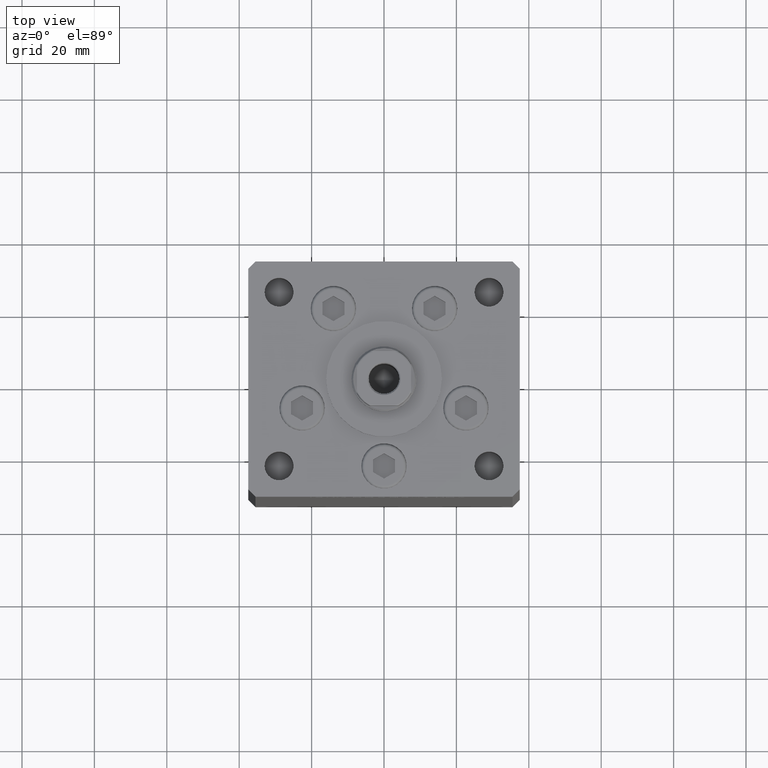
[diagram: clean part render]
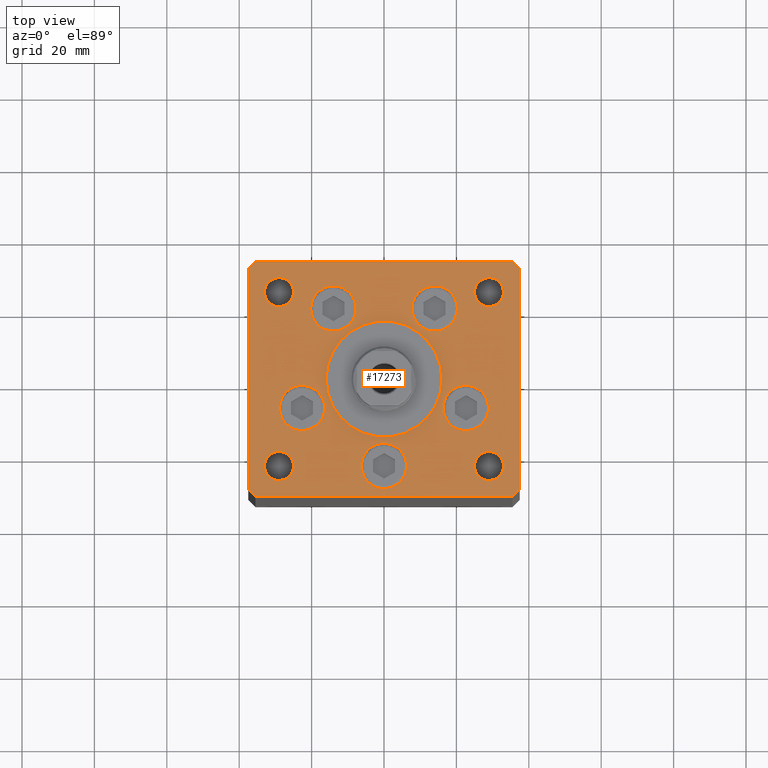
[diagram: same view with one face highlighted and labeled with its STEP entity id]
A machine part, top view. The second image highlights one B-rep face of the part: STEP entity #17273.
In plain terms, the highlighted planar face has unit normal (0, 0, 1).
Its self-contained STEP definition (entity closure, byte-faithful):
#188 = EDGE_CURVE ( 'NONE', #40757, #30169, #30463, .T. ) ;
#371 = VERTEX_POINT ( 'NONE', #25803 ) ;
#455 = VERTEX_POINT ( 'NONE', #30554 ) ;
#525 = CARTESIAN_POINT ( 'NONE',  ( -29.00000000000000000, -23.99999999999999645, 0.000000000000000000 ) ) ;
#582 = LINE ( 'NONE', #8499, #25822 ) ;
#586 = DIRECTION ( 'NONE',  ( 0.000000000000000000, 0.000000000000000000, 1.000000000000000000 ) ) ;
#613 = VERTEX_POINT ( 'NONE', #29712 ) ;
#841 = DIRECTION ( 'NONE',  ( 1.000000000000000000, 0.000000000000000000, 0.000000000000000000 ) ) ;
#1066 = DIRECTION ( 'NONE',  ( -0.7071067811865524577, -0.7071067811865426878, 0.000000000000000000 ) ) ;
#1152 = VERTEX_POINT ( 'NONE', #44031 ) ;
#1302 = AXIS2_PLACEMENT_3D ( 'NONE', #8508, #13500, #30383 ) ;
#1548 = DIRECTION ( 'NONE',  ( 1.000000000000000000, 0.000000000000000000, 0.000000000000000000 ) ) ;
#1757 = CIRCLE ( 'NONE', #16059, 6.250000000000001776 ) ;
#2169 = CIRCLE ( 'NONE', #8912, 3.999999999999996447 ) ;
#2245 = CARTESIAN_POINT ( 'NONE',  ( -29.00000000000000000, 24.00000000000000711, 0.000000000000000000 ) ) ;
#2303 = VERTEX_POINT ( 'NONE', #41599 ) ;
#2668 = AXIS2_PLACEMENT_3D ( 'NONE', #46676, #34528, #14211 ) ;
#2766 = ORIENTED_EDGE ( 'NONE', *, *, #35636, .F. ) ;
#2816 = AXIS2_PLACEMENT_3D ( 'NONE', #3508, #48083, #7723 ) ;
#2934 = AXIS2_PLACEMENT_3D ( 'NONE', #11773, #43961, #27372 ) ;
#3452 = CARTESIAN_POINT ( 'NONE',  ( 35.50000000000001421, -32.49999999999992184, 0.000000000000000000 ) ) ;
#3508 = CARTESIAN_POINT ( 'NONE',  ( 0.000000000000000000, 0.000000000000000000, 0.000000000000000000 ) ) ;
#4004 = CIRCLE ( 'NONE', #23394, 6.250000000000001776 ) ;
#4202 = ORIENTED_EDGE ( 'NONE', *, *, #49988, .F. ) ;
#4238 = ORIENTED_EDGE ( 'NONE', *, *, #188, .F. ) ;
#4450 = CARTESIAN_POINT ( 'NONE',  ( 0.000000000000000000, -24.00000000000001066, 0.000000000000000000 ) ) ;
#4655 = VECTOR ( 'NONE', #21999, 1000.000000000000000 ) ;
#5321 = DIRECTION ( 'NONE',  ( 0.7071067811865512365, -0.7071067811865439090, 0.000000000000000000 ) ) ;
#5622 = CARTESIAN_POINT ( 'NONE',  ( 29.00000000000000000, 24.00000000000000355, 0.000000000000000000 ) ) ;
#5624 = VERTEX_POINT ( 'NONE', #21931 ) ;
#5813 = CARTESIAN_POINT ( 'NONE',  ( 16.00000000000000355, -4.979459025271462852E-15, 0.000000000000000000 ) ) ;
#5903 = LINE ( 'NONE', #46532, #4655 ) ;
#6239 = VECTOR ( 'NONE', #1066, 1000.000000000000000 ) ;
#6382 = CARTESIAN_POINT ( 'NONE',  ( 22.62741699796953299, -8.000000000000000000, 0.000000000000000000 ) ) ;
#6588 = ORIENTED_EDGE ( 'NONE', *, *, #15008, .F. ) ;
#6636 = ORIENTED_EDGE ( 'NONE', *, *, #30444, .F. ) ;
#7284 = EDGE_LOOP ( 'NONE', ( #41066, #14195 ) ) ;
#7306 = DIRECTION ( 'NONE',  ( 0.000000000000000000, 0.000000000000000000, 1.000000000000000000 ) ) ;
#7467 = FACE_BOUND ( 'NONE', #41388, .T. ) ;
#7515 = EDGE_CURVE ( 'NONE', #23710, #7674, #8545, .T. ) ;
#7674 = VERTEX_POINT ( 'NONE', #5813 ) ;
#7723 = DIRECTION ( 'NONE',  ( 1.000000000000000000, 0.000000000000000000, 0.000000000000000000 ) ) ;
#7798 = ORIENTED_EDGE ( 'NONE', *, *, #18964, .T. ) ;
#7872 = DIRECTION ( 'NONE',  ( 0.000000000000000000, 0.000000000000000000, 1.000000000000000000 ) ) ;
#8185 = DIRECTION ( 'NONE',  ( 0.000000000000000000, 0.000000000000000000, 1.000000000000000000 ) ) ;
#8249 = FACE_BOUND ( 'NONE', #29789, .T. ) ;
#8253 = VERTEX_POINT ( 'NONE', #33146 ) ;
#8456 = EDGE_CURVE ( 'NONE', #26670, #5624, #49107, .T. ) ;
#8499 = CARTESIAN_POINT ( 'NONE',  ( 35.50000000000000000, 32.49999999999999289, 0.000000000000000000 ) ) ;
#8508 = CARTESIAN_POINT ( 'NONE',  ( 0.000000000000000000, -6.938893903907228378E-15, 0.000000000000000000 ) ) ;
#8545 = CIRCLE ( 'NONE', #48155, 16.00000000000000355 ) ;
#8912 = AXIS2_PLACEMENT_3D ( 'NONE', #525, #8185, #20317 ) ;
#9466 = CARTESIAN_POINT ( 'NONE',  ( 29.00000000000000000, 24.00000000000000355, 0.000000000000000000 ) ) ;
#10193 = ORIENTED_EDGE ( 'NONE', *, *, #7515, .F. ) ;
#10365 = ORIENTED_EDGE ( 'NONE', *, *, #44859, .F. ) ;
#10614 = CARTESIAN_POINT ( 'NONE',  ( 22.62741699796953299, -8.000000000000000000, 0.000000000000000000 ) ) ;
#10687 = VERTEX_POINT ( 'NONE', #36722 ) ;
#10809 = DIRECTION ( 'NONE',  ( 0.000000000000000000, 0.000000000000000000, 1.000000000000000000 ) ) ;
#11134 = DIRECTION ( 'NONE',  ( 1.000000000000000000, 0.000000000000000000, 0.000000000000000000 ) ) ;
#11228 = LINE ( 'NONE', #20180, #28762 ) ;
#11259 = CARTESIAN_POINT ( 'NONE',  ( 13.99106857963324124, 19.50000000000000000, 0.000000000000000000 ) ) ;
#11357 = EDGE_LOOP ( 'NONE', ( #21121, #38779 ) ) ;
#11427 = EDGE_CURVE ( 'NONE', #455, #23009, #11228, .T. ) ;
#11773 = CARTESIAN_POINT ( 'NONE',  ( -29.00000000000000000, 24.00000000000000711, 0.000000000000000000 ) ) ;
#11778 = DIRECTION ( 'NONE',  ( 0.000000000000000000, 0.000000000000000000, 1.000000000000000000 ) ) ;
#11832 = EDGE_CURVE ( 'NONE', #41607, #2303, #32981, .T. ) ;
#11909 = AXIS2_PLACEMENT_3D ( 'NONE', #42743, #10809, #18736 ) ;
#12240 = ORIENTED_EDGE ( 'NONE', *, *, #12600, .F. ) ;
#12400 = VECTOR ( 'NONE', #20367, 1000.000000000000000 ) ;
#12600 = EDGE_CURVE ( 'NONE', #39849, #13601, #44801, .T. ) ;
#12680 = CIRCLE ( 'NONE', #26173, 4.000000000000000000 ) ;
#12711 = CARTESIAN_POINT ( 'NONE',  ( -16.00000000000000355, -6.938893903907228378E-15, 0.000000000000000000 ) ) ;
#13028 = CARTESIAN_POINT ( 'NONE',  ( -16.37741699796953299, -8.000000000000000000, 0.000000000000000000 ) ) ;
#13500 = DIRECTION ( 'NONE',  ( 0.000000000000000000, 0.000000000000000000, 1.000000000000000000 ) ) ;
#13601 = VERTEX_POINT ( 'NONE', #44167 ) ;
#13724 = ORIENTED_EDGE ( 'NONE', *, *, #41458, .T. ) ;
#14195 = ORIENTED_EDGE ( 'NONE', *, *, #24951, .F. ) ;
#14211 = DIRECTION ( 'NONE',  ( -1.000000000000000000, 0.000000000000000000, 0.000000000000000000 ) ) ;
#14385 = ORIENTED_EDGE ( 'NONE', *, *, #36220, .F. ) ;
#14528 = CIRCLE ( 'NONE', #49893, 4.000000000000000000 ) ;
#14638 = AXIS2_PLACEMENT_3D ( 'NONE', #6382, #39099, #26958 ) ;
#14784 = AXIS2_PLACEMENT_3D ( 'NONE', #29800, #45350, #1548 ) ;
#15008 = EDGE_CURVE ( 'NONE', #26613, #20747, #14528, .T. ) ;
#15330 = VECTOR ( 'NONE', #16913, 1000.000000000000000 ) ;
#15587 = EDGE_CURVE ( 'NONE', #23009, #613, #20453, .T. ) ;
#15588 = DIRECTION ( 'NONE',  ( 0.7071067811865463515, 0.7071067811865487940, 0.000000000000000000 ) ) ;
#15645 = CIRCLE ( 'NONE', #48524, 6.250000000000000000 ) ;
#15746 = CARTESIAN_POINT ( 'NONE',  ( -37.50000000000000000, -30.50000000000004263, 0.000000000000000000 ) ) ;
#16059 = AXIS2_PLACEMENT_3D ( 'NONE', #20120, #24077, #23553 ) ;
#16659 = AXIS2_PLACEMENT_3D ( 'NONE', #40956, #586, #841 ) ;
#16913 = DIRECTION ( 'NONE',  ( 0.000000000000000000, 1.000000000000000000, 0.000000000000000000 ) ) ;
#17273 = ADVANCED_FACE ( 'NONE', ( #44124, #32519, #43858, #39914, #43610, #24332, #7467, #23550, #44387, #40170, #8249 ), #39650, .T. ) ;
#17660 = ORIENTED_EDGE ( 'NONE', *, *, #11832, .T. ) ;
#18337 = DIRECTION ( 'NONE',  ( -0.000000000000000000, -0.000000000000000000, -1.000000000000000000 ) ) ;
#18736 = DIRECTION ( 'NONE',  ( 1.000000000000000000, 0.000000000000000000, 0.000000000000000000 ) ) ;
#18964 = EDGE_CURVE ( 'NONE', #43703, #26670, #23001, .T. ) ;
#18986 = CARTESIAN_POINT ( 'NONE',  ( 20.24106857963324302, 19.50000000000000000, 0.000000000000000000 ) ) ;
#19027 = EDGE_CURVE ( 'NONE', #1152, #37340, #47488, .T. ) ;
#19055 = DIRECTION ( 'NONE',  ( 1.000000000000000000, 0.000000000000000000, 0.000000000000000000 ) ) ;
#19338 = AXIS2_PLACEMENT_3D ( 'NONE', #10614, #26714, #19055 ) ;
#19366 = CIRCLE ( 'NONE', #40427, 4.000000000000000000 ) ;
#19641 = CARTESIAN_POINT ( 'NONE',  ( 25.00000000000000355, -23.99999999999999645, 0.000000000000000000 ) ) ;
#20120 = CARTESIAN_POINT ( 'NONE',  ( -22.62741699796953299, -8.000000000000000000, 0.000000000000000000 ) ) ;
#20180 = CARTESIAN_POINT ( 'NONE',  ( -37.50000000000001421, 30.50000000000000000, 0.000000000000000000 ) ) ;
#20269 = CARTESIAN_POINT ( 'NONE',  ( 0.000000000000000000, -24.00000000000001066, 0.000000000000000000 ) ) ;
#20273 = ORIENTED_EDGE ( 'NONE', *, *, #44137, .F. ) ;
#20309 = ORIENTED_EDGE ( 'NONE', *, *, #21876, .T. ) ;
#20317 = DIRECTION ( 'NONE',  ( 1.000000000000000000, 0.000000000000000000, 0.000000000000000000 ) ) ;
#20367 = DIRECTION ( 'NONE',  ( 1.000000000000000000, 1.172770800660376149E-15, 0.000000000000000000 ) ) ;
#20453 = LINE ( 'NONE', #29590, #24658 ) ;
#20491 = EDGE_CURVE ( 'NONE', #10687, #455, #37212, .T. ) ;
#20545 = DIRECTION ( 'NONE',  ( 0.000000000000000000, 0.000000000000000000, 1.000000000000000000 ) ) ;
#20747 = VERTEX_POINT ( 'NONE', #32673 ) ;
#21023 = CIRCLE ( 'NONE', #19338, 6.250000000000001776 ) ;
#21121 = ORIENTED_EDGE ( 'NONE', *, *, #40512, .F. ) ;
#21734 = EDGE_LOOP ( 'NONE', ( #10193, #48379 ) ) ;
#21876 = EDGE_CURVE ( 'NONE', #26548, #371, #45025, .T. ) ;
#21931 = CARTESIAN_POINT ( 'NONE',  ( 37.50000000000000711, 30.50000000000001421, 0.000000000000000000 ) ) ;
#21999 = DIRECTION ( 'NONE',  ( -0.7071067811865524577, 0.7071067811865426878, 0.000000000000000000 ) ) ;
#22259 = VERTEX_POINT ( 'NONE', #13028 ) ;
#22508 = CARTESIAN_POINT ( 'NONE',  ( 24.99999999999999645, 24.00000000000000355, 0.000000000000000000 ) ) ;
#23001 = LINE ( 'NONE', #3452, #29825 ) ;
#23009 = VERTEX_POINT ( 'NONE', #15746 ) ;
#23394 = AXIS2_PLACEMENT_3D ( 'NONE', #31859, #23932, #39774 ) ;
#23532 = EDGE_CURVE ( 'NONE', #5624, #39747, #5903, .T. ) ;
#23550 = FACE_BOUND ( 'NONE', #41776, .T. ) ;
#23553 = DIRECTION ( 'NONE',  ( 1.000000000000000000, 0.000000000000000000, 0.000000000000000000 ) ) ;
#23710 = VERTEX_POINT ( 'NONE', #12711 ) ;
#23838 = CARTESIAN_POINT ( 'NONE',  ( 35.50000000000001421, -32.49999999999992184, 0.000000000000000000 ) ) ;
#23932 = DIRECTION ( 'NONE',  ( 0.000000000000000000, 0.000000000000000000, 1.000000000000000000 ) ) ;
#24037 = CIRCLE ( 'NONE', #1302, 16.00000000000000355 ) ;
#24077 = DIRECTION ( 'NONE',  ( 0.000000000000000000, 0.000000000000000000, 1.000000000000000000 ) ) ;
#24332 = FACE_BOUND ( 'NONE', #46493, .T. ) ;
#24658 = VECTOR ( 'NONE', #5321, 1000.000000000000000 ) ;
#24706 = EDGE_CURVE ( 'NONE', #7674, #23710, #24037, .T. ) ;
#24951 = EDGE_CURVE ( 'NONE', #51140, #50467, #2169, .T. ) ;
#25150 = CARTESIAN_POINT ( 'NONE',  ( -25.00000000000000000, 24.00000000000000711, 0.000000000000000000 ) ) ;
#25615 = VERTEX_POINT ( 'NONE', #27562 ) ;
#25803 = CARTESIAN_POINT ( 'NONE',  ( -33.00000000000000000, 24.00000000000000711, 0.000000000000000000 ) ) ;
#25822 = VECTOR ( 'NONE', #28558, 1000.000000000000000 ) ;
#26173 = AXIS2_PLACEMENT_3D ( 'NONE', #5622, #37289, #44940 ) ;
#26504 = ORIENTED_EDGE ( 'NONE', *, *, #8456, .T. ) ;
#26548 = VERTEX_POINT ( 'NONE', #25150 ) ;
#26594 = CARTESIAN_POINT ( 'NONE',  ( -7.741068579633241242, 19.50000000000000000, 0.000000000000000000 ) ) ;
#26613 = VERTEX_POINT ( 'NONE', #22508 ) ;
#26645 = CARTESIAN_POINT ( 'NONE',  ( 35.50000000000000000, 32.49999999999999289, 0.000000000000000000 ) ) ;
#26670 = VERTEX_POINT ( 'NONE', #35166 ) ;
#26714 = DIRECTION ( 'NONE',  ( 0.000000000000000000, 0.000000000000000000, 1.000000000000000000 ) ) ;
#26958 = DIRECTION ( 'NONE',  ( 1.000000000000000000, 0.000000000000000000, 0.000000000000000000 ) ) ;
#27015 = CIRCLE ( 'NONE', #38831, 6.250000000000000000 ) ;
#27372 = DIRECTION ( 'NONE',  ( -1.000000000000000000, 0.000000000000000000, 0.000000000000000000 ) ) ;
#27562 = CARTESIAN_POINT ( 'NONE',  ( -6.250000000000000000, -24.00000000000001066, 0.000000000000000000 ) ) ;
#27651 = CARTESIAN_POINT ( 'NONE',  ( 29.00000000000000355, -23.99999999999999645, 0.000000000000000000 ) ) ;
#27652 = EDGE_CURVE ( 'NONE', #39747, #10687, #582, .T. ) ;
#27842 = CIRCLE ( 'NONE', #29531, 6.250000000000000000 ) ;
#27944 = EDGE_CURVE ( 'NONE', #50467, #51140, #35957, .T. ) ;
#28558 = DIRECTION ( 'NONE',  ( -1.000000000000000000, -1.954618001100627573E-16, 0.000000000000000000 ) ) ;
#28638 = ORIENTED_EDGE ( 'NONE', *, *, #15587, .T. ) ;
#28762 = VECTOR ( 'NONE', #43663, 1000.000000000000000 ) ;
#28783 = EDGE_LOOP ( 'NONE', ( #28638, #51506, #7798, #26504, #37560, #41699, #37961, #41170 ) ) ;
#29308 = CARTESIAN_POINT ( 'NONE',  ( 37.50000000000000711, -30.49999999999992895, 0.000000000000000000 ) ) ;
#29513 = EDGE_LOOP ( 'NONE', ( #20273, #51640 ) ) ;
#29531 = AXIS2_PLACEMENT_3D ( 'NONE', #20269, #7872, #48754 ) ;
#29590 = CARTESIAN_POINT ( 'NONE',  ( -37.50000000000000000, -30.50000000000004263, 0.000000000000000000 ) ) ;
#29712 = CARTESIAN_POINT ( 'NONE',  ( -35.50000000000001421, -32.50000000000000711, 0.000000000000000000 ) ) ;
#29789 = EDGE_LOOP ( 'NONE', ( #37419, #17660 ) ) ;
#29800 = CARTESIAN_POINT ( 'NONE',  ( -29.00000000000000000, -23.99999999999999645, 0.000000000000000000 ) ) ;
#29825 = VECTOR ( 'NONE', #15588, 1000.000000000000000 ) ;
#30002 = CARTESIAN_POINT ( 'NONE',  ( -25.00000000000000355, -23.99999999999999645, 0.000000000000000000 ) ) ;
#30169 = VERTEX_POINT ( 'NONE', #26594 ) ;
#30178 = CARTESIAN_POINT ( 'NONE',  ( 28.87741699796953654, -8.000000000000000000, 0.000000000000000000 ) ) ;
#30383 = DIRECTION ( 'NONE',  ( 1.000000000000000000, 0.000000000000000000, 0.000000000000000000 ) ) ;
#30444 = EDGE_CURVE ( 'NONE', #30169, #40757, #15645, .T. ) ;
#30463 = CIRCLE ( 'NONE', #11909, 6.250000000000000000 ) ;
#30554 = CARTESIAN_POINT ( 'NONE',  ( -37.50000000000001421, 30.50000000000000000, 0.000000000000000000 ) ) ;
#31195 = DIRECTION ( 'NONE',  ( 0.000000000000000000, 0.000000000000000000, 1.000000000000000000 ) ) ;
#31859 = CARTESIAN_POINT ( 'NONE',  ( -22.62741699796953299, -8.000000000000000000, 0.000000000000000000 ) ) ;
#31973 = LINE ( 'NONE', #32244, #12400 ) ;
#32244 = CARTESIAN_POINT ( 'NONE',  ( -35.50000000000001421, -32.50000000000000711, 0.000000000000000000 ) ) ;
#32519 = FACE_BOUND ( 'NONE', #43393, .T. ) ;
#32673 = CARTESIAN_POINT ( 'NONE',  ( 33.00000000000000000, 24.00000000000000355, 0.000000000000000000 ) ) ;
#32981 = CIRCLE ( 'NONE', #2668, 4.000000000000000000 ) ;
#33146 = CARTESIAN_POINT ( 'NONE',  ( 6.250000000000000000, -24.00000000000001066, 0.000000000000000000 ) ) ;
#34433 = DIRECTION ( 'NONE',  ( -1.000000000000000000, 0.000000000000000000, 0.000000000000000000 ) ) ;
#34528 = DIRECTION ( 'NONE',  ( -0.000000000000000000, -0.000000000000000000, -1.000000000000000000 ) ) ;
#34725 = EDGE_CURVE ( 'NONE', #613, #43703, #31973, .T. ) ;
#35166 = CARTESIAN_POINT ( 'NONE',  ( 37.50000000000000711, -30.49999999999992895, 0.000000000000000000 ) ) ;
#35196 = CIRCLE ( 'NONE', #16659, 6.250000000000000000 ) ;
#35582 = CARTESIAN_POINT ( 'NONE',  ( -28.87741699796953654, -8.000000000000000000, 0.000000000000000000 ) ) ;
#35636 = EDGE_CURVE ( 'NONE', #13601, #39849, #35196, .T. ) ;
#35957 = CIRCLE ( 'NONE', #14784, 3.999999999999996447 ) ;
#36215 = EDGE_CURVE ( 'NONE', #2303, #41607, #42768, .T. ) ;
#36220 = EDGE_CURVE ( 'NONE', #51646, #22259, #4004, .T. ) ;
#36635 = DIRECTION ( 'NONE',  ( 1.000000000000000000, 0.000000000000000000, 0.000000000000000000 ) ) ;
#36722 = CARTESIAN_POINT ( 'NONE',  ( -35.50000000000000711, 32.49999999999997868, 0.000000000000000000 ) ) ;
#37212 = LINE ( 'NONE', #40653, #6239 ) ;
#37289 = DIRECTION ( 'NONE',  ( 0.000000000000000000, 0.000000000000000000, 1.000000000000000000 ) ) ;
#37340 = VERTEX_POINT ( 'NONE', #30178 ) ;
#37419 = ORIENTED_EDGE ( 'NONE', *, *, #36215, .T. ) ;
#37560 = ORIENTED_EDGE ( 'NONE', *, *, #23532, .T. ) ;
#37692 = DIRECTION ( 'NONE',  ( 0.000000000000000000, 0.000000000000000000, 1.000000000000000000 ) ) ;
#37961 = ORIENTED_EDGE ( 'NONE', *, *, #20491, .T. ) ;
#38779 = ORIENTED_EDGE ( 'NONE', *, *, #19027, .F. ) ;
#38831 = AXIS2_PLACEMENT_3D ( 'NONE', #4450, #20545, #36635 ) ;
#38976 = DIRECTION ( 'NONE',  ( 1.000000000000000000, 0.000000000000000000, 0.000000000000000000 ) ) ;
#39099 = DIRECTION ( 'NONE',  ( 0.000000000000000000, 0.000000000000000000, 1.000000000000000000 ) ) ;
#39650 = PLANE ( 'NONE',  #2816 ) ;
#39747 = VERTEX_POINT ( 'NONE', #26645 ) ;
#39774 = DIRECTION ( 'NONE',  ( 1.000000000000000000, 0.000000000000000000, 0.000000000000000000 ) ) ;
#39849 = VERTEX_POINT ( 'NONE', #18986 ) ;
#39914 = FACE_BOUND ( 'NONE', #11357, .T. ) ;
#40170 = FACE_OUTER_BOUND ( 'NONE', #28783, .T. ) ;
#40427 = AXIS2_PLACEMENT_3D ( 'NONE', #2245, #18337, #34433 ) ;
#40512 = EDGE_CURVE ( 'NONE', #37340, #1152, #21023, .T. ) ;
#40653 = CARTESIAN_POINT ( 'NONE',  ( -35.50000000000000711, 32.49999999999997868, 0.000000000000000000 ) ) ;
#40757 = VERTEX_POINT ( 'NONE', #50910 ) ;
#40956 = CARTESIAN_POINT ( 'NONE',  ( 13.99106857963324124, 19.50000000000000000, 0.000000000000000000 ) ) ;
#41066 = ORIENTED_EDGE ( 'NONE', *, *, #27944, .F. ) ;
#41170 = ORIENTED_EDGE ( 'NONE', *, *, #11427, .T. ) ;
#41388 = EDGE_LOOP ( 'NONE', ( #20309, #13724 ) ) ;
#41458 = EDGE_CURVE ( 'NONE', #371, #26548, #19366, .T. ) ;
#41599 = CARTESIAN_POINT ( 'NONE',  ( 33.00000000000000000, -23.99999999999999645, 0.000000000000000000 ) ) ;
#41607 = VERTEX_POINT ( 'NONE', #19641 ) ;
#41699 = ORIENTED_EDGE ( 'NONE', *, *, #27652, .T. ) ;
#41776 = EDGE_LOOP ( 'NONE', ( #10365, #6588 ) ) ;
#42278 = AXIS2_PLACEMENT_3D ( 'NONE', #11259, #7306, #38976 ) ;
#42743 = CARTESIAN_POINT ( 'NONE',  ( -13.99106857963324124, 19.50000000000000000, 0.000000000000000000 ) ) ;
#42768 = CIRCLE ( 'NONE', #46158, 4.000000000000000000 ) ;
#43263 = EDGE_CURVE ( 'NONE', #25615, #8253, #27842, .T. ) ;
#43393 = EDGE_LOOP ( 'NONE', ( #6636, #4238 ) ) ;
#43610 = FACE_BOUND ( 'NONE', #29513, .T. ) ;
#43663 = DIRECTION ( 'NONE',  ( 2.275047181608926165E-16, -1.000000000000000000, 0.000000000000000000 ) ) ;
#43703 = VERTEX_POINT ( 'NONE', #23838 ) ;
#43728 = DIRECTION ( 'NONE',  ( -0.000000000000000000, -0.000000000000000000, -1.000000000000000000 ) ) ;
#43858 = FACE_BOUND ( 'NONE', #43932, .T. ) ;
#43932 = EDGE_LOOP ( 'NONE', ( #12240, #2766 ) ) ;
#43961 = DIRECTION ( 'NONE',  ( -0.000000000000000000, -0.000000000000000000, -1.000000000000000000 ) ) ;
#44031 = CARTESIAN_POINT ( 'NONE',  ( 16.37741699796953299, -8.000000000000000000, 0.000000000000000000 ) ) ;
#44124 = FACE_BOUND ( 'NONE', #21734, .T. ) ;
#44137 = EDGE_CURVE ( 'NONE', #8253, #25615, #27015, .T. ) ;
#44167 = CARTESIAN_POINT ( 'NONE',  ( 7.741068579633241242, 19.50000000000000000, 0.000000000000000000 ) ) ;
#44227 = DIRECTION ( 'NONE',  ( 1.000000000000000000, 0.000000000000000000, 0.000000000000000000 ) ) ;
#44387 = FACE_BOUND ( 'NONE', #7284, .T. ) ;
#44801 = CIRCLE ( 'NONE', #42278, 6.250000000000000000 ) ;
#44859 = EDGE_CURVE ( 'NONE', #20747, #26613, #12680, .T. ) ;
#44940 = DIRECTION ( 'NONE',  ( 1.000000000000000000, 0.000000000000000000, 0.000000000000000000 ) ) ;
#45025 = CIRCLE ( 'NONE', #2934, 4.000000000000000000 ) ;
#45350 = DIRECTION ( 'NONE',  ( 0.000000000000000000, 0.000000000000000000, 1.000000000000000000 ) ) ;
#46158 = AXIS2_PLACEMENT_3D ( 'NONE', #27651, #43728, #48471 ) ;
#46391 = DIRECTION ( 'NONE',  ( 1.000000000000000000, 0.000000000000000000, 0.000000000000000000 ) ) ;
#46493 = EDGE_LOOP ( 'NONE', ( #4202, #14385 ) ) ;
#46532 = CARTESIAN_POINT ( 'NONE',  ( 37.50000000000000711, 30.50000000000001421, 0.000000000000000000 ) ) ;
#46676 = CARTESIAN_POINT ( 'NONE',  ( 29.00000000000000355, -23.99999999999999645, 0.000000000000000000 ) ) ;
#47488 = CIRCLE ( 'NONE', #14638, 6.250000000000001776 ) ;
#47544 = CARTESIAN_POINT ( 'NONE',  ( 0.000000000000000000, -6.938893903907228378E-15, 0.000000000000000000 ) ) ;
#48083 = DIRECTION ( 'NONE',  ( -0.000000000000000000, 0.000000000000000000, 1.000000000000000000 ) ) ;
#48155 = AXIS2_PLACEMENT_3D ( 'NONE', #47544, #31195, #11134 ) ;
#48359 = CARTESIAN_POINT ( 'NONE',  ( -32.99999999999999289, -23.99999999999999645, 0.000000000000000000 ) ) ;
#48379 = ORIENTED_EDGE ( 'NONE', *, *, #24706, .F. ) ;
#48471 = DIRECTION ( 'NONE',  ( -1.000000000000000000, 0.000000000000000000, 0.000000000000000000 ) ) ;
#48524 = AXIS2_PLACEMENT_3D ( 'NONE', #51621, #11778, #44227 ) ;
#48754 = DIRECTION ( 'NONE',  ( 1.000000000000000000, 0.000000000000000000, 0.000000000000000000 ) ) ;
#49107 = LINE ( 'NONE', #29308, #15330 ) ;
#49893 = AXIS2_PLACEMENT_3D ( 'NONE', #9466, #37692, #46391 ) ;
#49988 = EDGE_CURVE ( 'NONE', #22259, #51646, #1757, .T. ) ;
#50467 = VERTEX_POINT ( 'NONE', #30002 ) ;
#50910 = CARTESIAN_POINT ( 'NONE',  ( -20.24106857963324302, 19.50000000000000000, 0.000000000000000000 ) ) ;
#51140 = VERTEX_POINT ( 'NONE', #48359 ) ;
#51506 = ORIENTED_EDGE ( 'NONE', *, *, #34725, .T. ) ;
#51621 = CARTESIAN_POINT ( 'NONE',  ( -13.99106857963324124, 19.50000000000000000, 0.000000000000000000 ) ) ;
#51640 = ORIENTED_EDGE ( 'NONE', *, *, #43263, .F. ) ;
#51646 = VERTEX_POINT ( 'NONE', #35582 ) ;